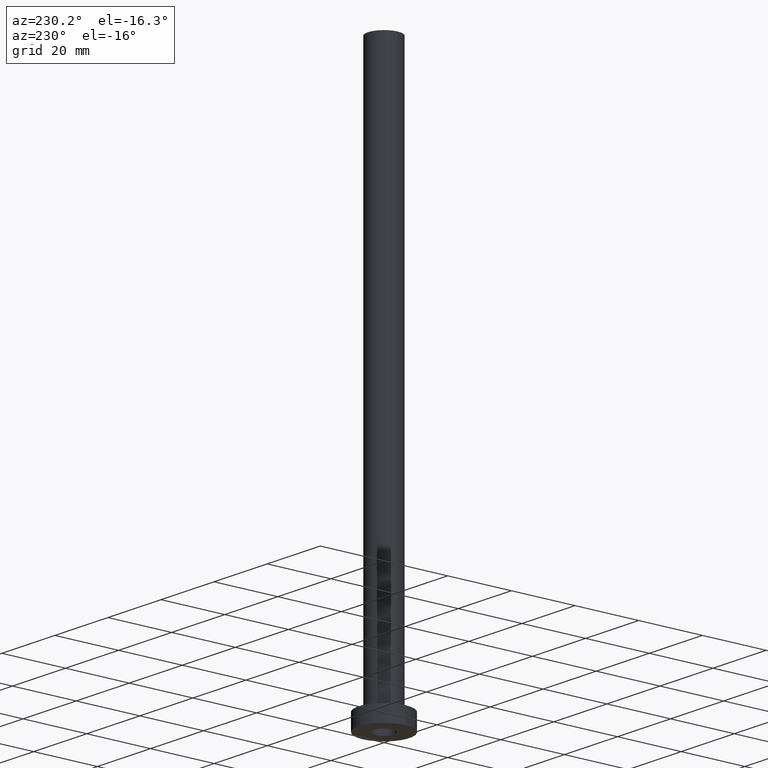
[diagram: clean part render]
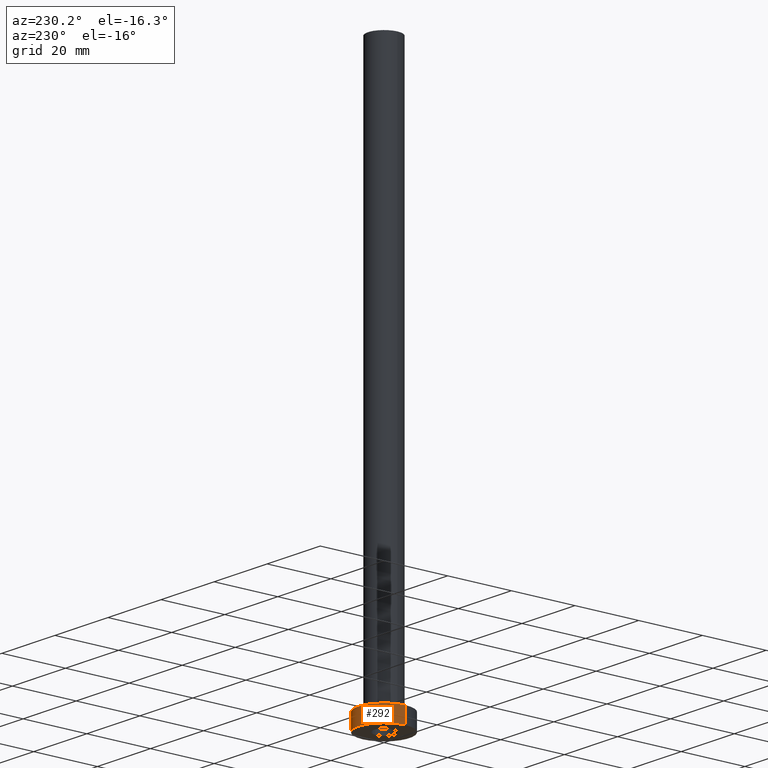
[diagram: same view with one face highlighted and labeled with its STEP entity id]
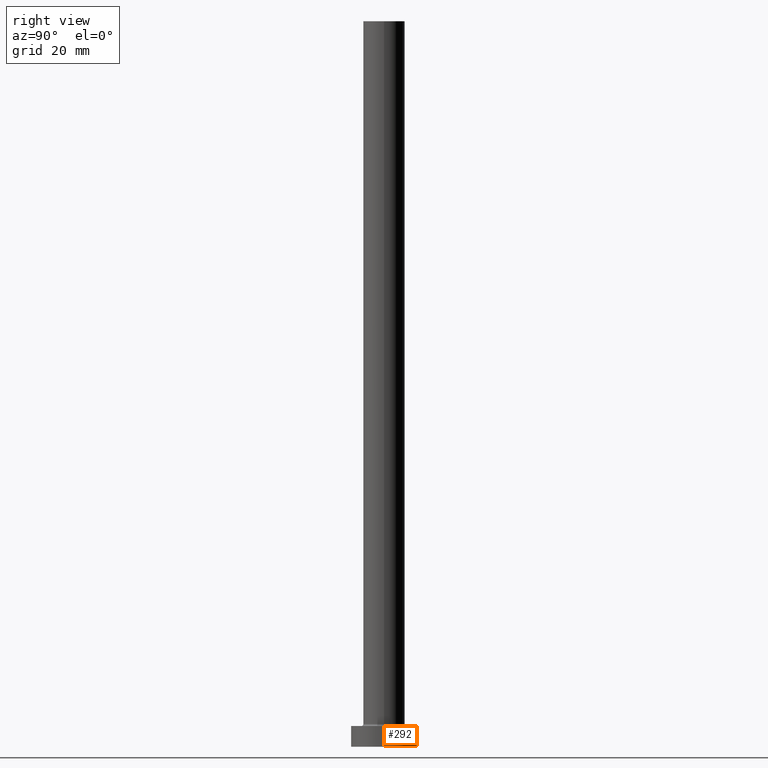
[diagram: same view with one face highlighted and labeled with its STEP entity id]
A machine part, auxiliary view. The second image highlights one B-rep face of the part: STEP entity #292.
A second angle (right view) of the same face is appended — the face is thin or edge-on in the first view.
In plain terms, the highlighted cylindrical surface (edge-blend (fillet) strip) has radius 8 mm, axis along (-0, -0, -1).
Its self-contained STEP definition (entity closure, byte-faithful):
#5 = DIRECTION ( 'NONE',  ( -0.000000000000000000, -0.000000000000000000, -1.000000000000000000 ) ) ;
#12 = ORIENTED_EDGE ( 'NONE', *, *, #297, .F. ) ;
#22 = CARTESIAN_POINT ( 'NONE',  ( 0.000000000000000000, 0.000000000000000000, 0.000000000000000000 ) ) ;
#27 = ORIENTED_EDGE ( 'NONE', *, *, #99, .T. ) ;
#32 = VERTEX_POINT ( 'NONE', #267 ) ;
#35 = AXIS2_PLACEMENT_3D ( 'NONE', #155, #301, #104 ) ;
#36 = CARTESIAN_POINT ( 'NONE',  ( 8.000000000000000000, 9.797174393178825657E-16, 5.000000000000000000 ) ) ;
#57 = VERTEX_POINT ( 'NONE', #412 ) ;
#73 = CARTESIAN_POINT ( 'NONE',  ( -8.000000000000000000, 0.000000000000000000, 5.000000000000000000 ) ) ;
#79 = LINE ( 'NONE', #73, #315 ) ;
#99 = EDGE_CURVE ( 'NONE', #202, #57, #112, .T. ) ;
#104 = DIRECTION ( 'NONE',  ( -1.000000000000000000, 0.000000000000000000, 0.000000000000000000 ) ) ;
#110 = CARTESIAN_POINT ( 'NONE',  ( 8.000000000000000000, 9.797174393178825657E-16, 5.000000000000000000 ) ) ;
#112 = CIRCLE ( 'NONE', #334, 8.000000000000000000 ) ;
#116 = LINE ( 'NONE', #110, #308 ) ;
#134 = CYLINDRICAL_SURFACE ( 'NONE', #35, 8.000000000000000000 ) ;
#155 = CARTESIAN_POINT ( 'NONE',  ( 0.000000000000000000, 0.000000000000000000, 5.000000000000000000 ) ) ;
#160 = FACE_OUTER_BOUND ( 'NONE', #357, .T. ) ;
#202 = VERTEX_POINT ( 'NONE', #435 ) ;
#228 = VERTEX_POINT ( 'NONE', #36 ) ;
#240 = AXIS2_PLACEMENT_3D ( 'NONE', #447, #452, #299 ) ;
#248 = DIRECTION ( 'NONE',  ( -0.000000000000000000, -0.000000000000000000, -1.000000000000000000 ) ) ;
#253 = DIRECTION ( 'NONE',  ( 1.000000000000000000, 0.000000000000000000, 0.000000000000000000 ) ) ;
#267 = CARTESIAN_POINT ( 'NONE',  ( -8.000000000000000000, 0.000000000000000000, 5.000000000000000000 ) ) ;
#282 = CIRCLE ( 'NONE', #240, 8.000000000000000000 ) ;
#292 = ADVANCED_FACE ( 'NONE', ( #160 ), #134, .T. ) ;
#297 = EDGE_CURVE ( 'NONE', #228, #32, #282, .T. ) ;
#299 = DIRECTION ( 'NONE',  ( 1.000000000000000000, 0.000000000000000000, 0.000000000000000000 ) ) ;
#301 = DIRECTION ( 'NONE',  ( -0.000000000000000000, -0.000000000000000000, -1.000000000000000000 ) ) ;
#308 = VECTOR ( 'NONE', #5, 1000.000000000000000 ) ;
#315 = VECTOR ( 'NONE', #248, 1000.000000000000000 ) ;
#334 = AXIS2_PLACEMENT_3D ( 'NONE', #22, #445, #253 ) ;
#343 = EDGE_CURVE ( 'NONE', #228, #202, #116, .T. ) ;
#357 = EDGE_LOOP ( 'NONE', ( #12, #449, #27, #425 ) ) ;
#397 = EDGE_CURVE ( 'NONE', #32, #57, #79, .T. ) ;
#412 = CARTESIAN_POINT ( 'NONE',  ( -8.000000000000000000, 0.000000000000000000, 0.000000000000000000 ) ) ;
#425 = ORIENTED_EDGE ( 'NONE', *, *, #397, .F. ) ;
#435 = CARTESIAN_POINT ( 'NONE',  ( 8.000000000000000000, 9.797174393178825657E-16, 0.000000000000000000 ) ) ;
#445 = DIRECTION ( 'NONE',  ( 0.000000000000000000, 0.000000000000000000, 1.000000000000000000 ) ) ;
#447 = CARTESIAN_POINT ( 'NONE',  ( 0.000000000000000000, 0.000000000000000000, 5.000000000000000000 ) ) ;
#449 = ORIENTED_EDGE ( 'NONE', *, *, #343, .T. ) ;
#452 = DIRECTION ( 'NONE',  ( 0.000000000000000000, 0.000000000000000000, 1.000000000000000000 ) ) ;